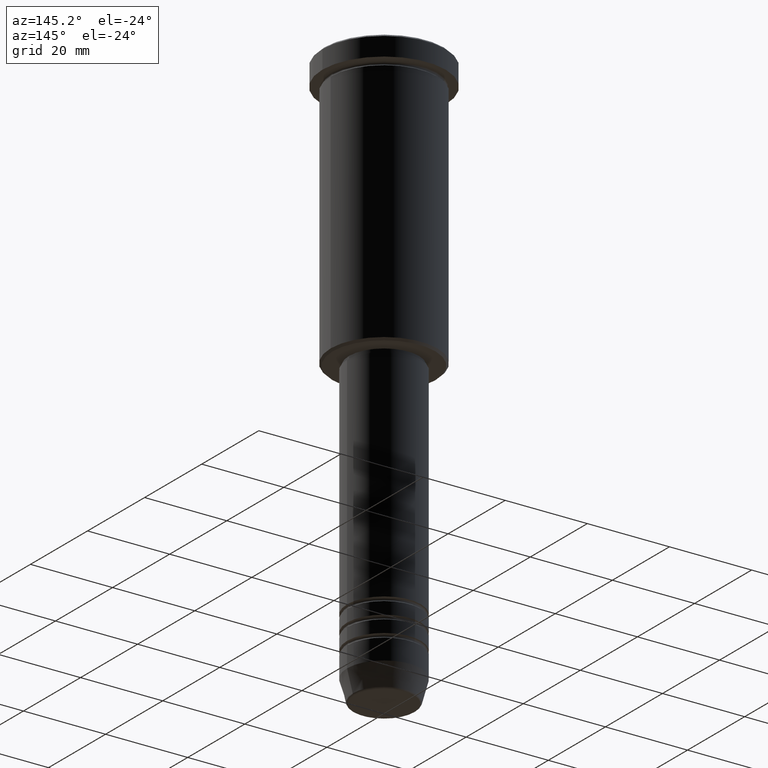
[diagram: clean part render]
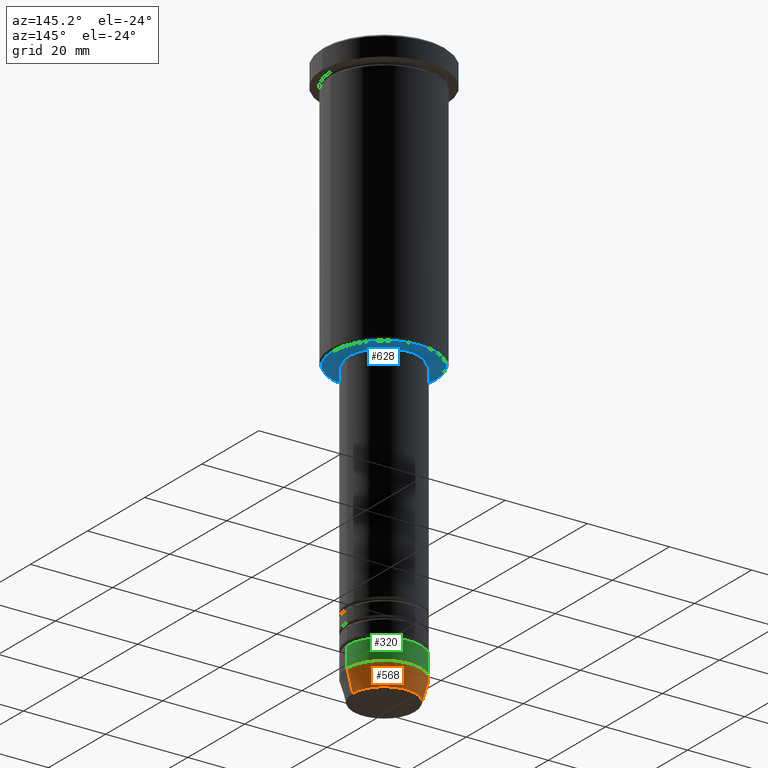
[diagram: same view with three faces highlighted in distinct colors, each labeled with its STEP entity id]
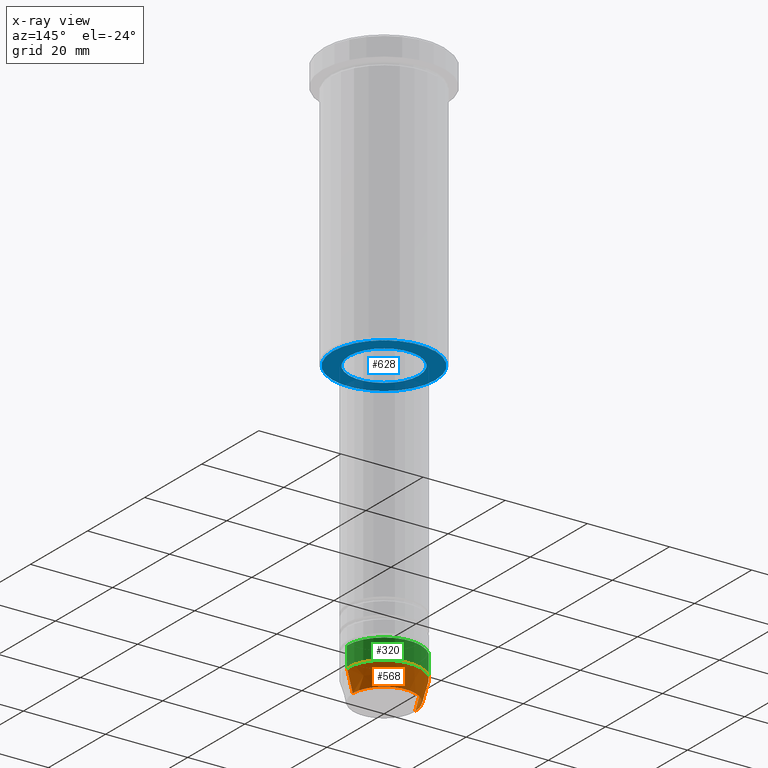
[diagram: x-ray of the same camera — body ghosted, the three highlighted faces saturated]
A machine part, auxiliary view with three faces highlighted in distinct colors.
The next image is the same camera in x-ray (body ghosted, the three faces saturated) — at least one of them is partly hidden behind the body in this view.
Their STEP definitions:

[orange] entity #568 — the highlighted conical surface has half-angle 15 deg.
#56 = CARTESIAN_POINT ( 'NONE',  ( 9.000000000000001776, 0.000000000000000000, -134.5000000000000000 ) ) ;
#64 = CARTESIAN_POINT ( 'NONE',  ( 9.000000000000001776, 0.000000000000000000, -134.5000000000000000 ) ) ;
#73 = DIRECTION ( 'NONE',  ( -0.000000000000000000, -0.000000000000000000, 1.000000000000000000 ) ) ;
#79 = CARTESIAN_POINT ( 'NONE',  ( 7.625578860783879698, 0.000000000000000000, -139.6294095225512706 ) ) ;
#116 = LINE ( 'NONE', #64, #734 ) ;
#166 = CARTESIAN_POINT ( 'NONE',  ( 0.000000000000000000, 0.000000000000000000, -139.6294095225512706 ) ) ;
#187 = EDGE_CURVE ( 'NONE', #752, #528, #116, .T. ) ;
#195 = CARTESIAN_POINT ( 'NONE',  ( 0.000000000000000000, 0.000000000000000000, -134.5000000000000000 ) ) ;
#212 = CONICAL_SURFACE ( 'NONE', #683, 9.000000000000001776, 0.2617993877991501295 ) ;
#221 = AXIS2_PLACEMENT_3D ( 'NONE', #1079, #73, #877 ) ;
#253 = DIRECTION ( 'NONE',  ( 1.000000000000000000, 0.000000000000000000, 0.000000000000000000 ) ) ;
#308 = VECTOR ( 'NONE', #715, 1000.000000000000000 ) ;
#325 = ORIENTED_EDGE ( 'NONE', *, *, #1105, .T. ) ;
#352 = CARTESIAN_POINT ( 'NONE',  ( -9.000000000000001776, 1.102182119232617911E-15, -134.5000000000000000 ) ) ;
#384 = VERTEX_POINT ( 'NONE', #352 ) ;
#394 = CARTESIAN_POINT ( 'NONE',  ( -7.625578860783880586, 1.018023096791544096E-15, -139.6294095225512706 ) ) ;
#400 = FACE_OUTER_BOUND ( 'NONE', #686, .T. ) ;
#433 = ORIENTED_EDGE ( 'NONE', *, *, #1142, .F. ) ;
#434 = CARTESIAN_POINT ( 'NONE',  ( -9.000000000000001776, 1.102182119232617911E-15, -134.5000000000000000 ) ) ;
#497 = CIRCLE ( 'NONE', #1122, 7.625578860783879698 ) ;
#528 = VERTEX_POINT ( 'NONE', #56 ) ;
#568 = ADVANCED_FACE ( 'NONE', ( #400 ), #212, .T. ) ;
#621 = EDGE_CURVE ( 'NONE', #1033, #384, #986, .T. ) ;
#682 = DIRECTION ( 'NONE',  ( 1.000000000000000000, 0.000000000000000000, 0.000000000000000000 ) ) ;
#683 = AXIS2_PLACEMENT_3D ( 'NONE', #195, #1147, #682 ) ;
#686 = EDGE_LOOP ( 'NONE', ( #325, #698, #433, #974 ) ) ;
#698 = ORIENTED_EDGE ( 'NONE', *, *, #621, .T. ) ;
#715 = DIRECTION ( 'NONE',  ( -0.2588190451025214056, 3.169619151431772953E-17, 0.9659258262890680902 ) ) ;
#734 = VECTOR ( 'NONE', #778, 1000.000000000000000 ) ;
#752 = VERTEX_POINT ( 'NONE', #79 ) ;
#778 = DIRECTION ( 'NONE',  ( 0.2588190451025214056, 0.000000000000000000, 0.9659258262890680902 ) ) ;
#877 = DIRECTION ( 'NONE',  ( 1.000000000000000000, 0.000000000000000000, 0.000000000000000000 ) ) ;
#974 = ORIENTED_EDGE ( 'NONE', *, *, #187, .F. ) ;
#986 = LINE ( 'NONE', #434, #308 ) ;
#1004 = CIRCLE ( 'NONE', #221, 9.000000000000001776 ) ;
#1033 = VERTEX_POINT ( 'NONE', #394 ) ;
#1068 = DIRECTION ( 'NONE',  ( -0.000000000000000000, -0.000000000000000000, 1.000000000000000000 ) ) ;
#1079 = CARTESIAN_POINT ( 'NONE',  ( 0.000000000000000000, 0.000000000000000000, -134.5000000000000000 ) ) ;
#1105 = EDGE_CURVE ( 'NONE', #752, #1033, #497, .T. ) ;
#1122 = AXIS2_PLACEMENT_3D ( 'NONE', #166, #1068, #253 ) ;
#1142 = EDGE_CURVE ( 'NONE', #528, #384, #1004, .T. ) ;
#1147 = DIRECTION ( 'NONE',  ( -0.000000000000000000, -0.000000000000000000, 1.000000000000000000 ) ) ;

[blue] entity #628 — the highlighted planar face has unit normal (0, 0, -1).
#15 = EDGE_LOOP ( 'NONE', ( #425, #561 ) ) ;
#30 = CARTESIAN_POINT ( 'NONE',  ( 0.000000000000000000, 0.000000000000000000, -66.00000000000000000 ) ) ;
#63 = EDGE_CURVE ( 'NONE', #493, #710, #770, .T. ) ;
#117 = AXIS2_PLACEMENT_3D ( 'NONE', #815, #606, #417 ) ;
#123 = CIRCLE ( 'NONE', #236, 8.500000000000000000 ) ;
#143 = DIRECTION ( 'NONE',  ( 0.000000000000000000, 0.000000000000000000, -1.000000000000000000 ) ) ;
#188 = CARTESIAN_POINT ( 'NONE',  ( 8.500000000000000000, 0.000000000000000000, -66.00000000000000000 ) ) ;
#231 = DIRECTION ( 'NONE',  ( -0.000000000000000000, -0.000000000000000000, 1.000000000000000000 ) ) ;
#236 = AXIS2_PLACEMENT_3D ( 'NONE', #498, #231, #1049 ) ;
#238 = AXIS2_PLACEMENT_3D ( 'NONE', #963, #143, #500 ) ;
#259 = EDGE_CURVE ( 'NONE', #585, #354, #123, .T. ) ;
#317 = DIRECTION ( 'NONE',  ( -0.000000000000000000, -0.000000000000000000, 1.000000000000000000 ) ) ;
#332 = PLANE ( 'NONE',  #117 ) ;
#339 = FACE_OUTER_BOUND ( 'NONE', #15, .T. ) ;
#354 = VERTEX_POINT ( 'NONE', #188 ) ;
#417 = DIRECTION ( 'NONE',  ( -1.000000000000000000, 0.000000000000000000, -0.000000000000000000 ) ) ;
#425 = ORIENTED_EDGE ( 'NONE', *, *, #63, .T. ) ;
#438 = FACE_BOUND ( 'NONE', #886, .T. ) ;
#484 = CARTESIAN_POINT ( 'NONE',  ( 0.000000000000000000, 0.000000000000000000, -66.00000000000000000 ) ) ;
#493 = VERTEX_POINT ( 'NONE', #1141 ) ;
#498 = CARTESIAN_POINT ( 'NONE',  ( 0.000000000000000000, 0.000000000000000000, -66.00000000000000000 ) ) ;
#500 = DIRECTION ( 'NONE',  ( -1.000000000000000000, 0.000000000000000000, 0.000000000000000000 ) ) ;
#561 = ORIENTED_EDGE ( 'NONE', *, *, #1180, .T. ) ;
#563 = AXIS2_PLACEMENT_3D ( 'NONE', #484, #317, #773 ) ;
#585 = VERTEX_POINT ( 'NONE', #600 ) ;
#600 = CARTESIAN_POINT ( 'NONE',  ( -8.500000000000000000, 1.040949779275250140E-15, -66.00000000000000000 ) ) ;
#606 = DIRECTION ( 'NONE',  ( 0.000000000000000000, 0.000000000000000000, -1.000000000000000000 ) ) ;
#618 = ORIENTED_EDGE ( 'NONE', *, *, #259, .T. ) ;
#628 = ADVANCED_FACE ( 'NONE', ( #339, #438 ), #332, .T. ) ;
#710 = VERTEX_POINT ( 'NONE', #970 ) ;
#758 = DIRECTION ( 'NONE',  ( -1.000000000000000000, 0.000000000000000000, 0.000000000000000000 ) ) ;
#770 = CIRCLE ( 'NONE', #1078, 12.49999999999999645 ) ;
#773 = DIRECTION ( 'NONE',  ( 1.000000000000000000, 0.000000000000000000, 0.000000000000000000 ) ) ;
#777 = CIRCLE ( 'NONE', #238, 12.49999999999999645 ) ;
#815 = CARTESIAN_POINT ( 'NONE',  ( 0.000000000000000000, 13.00000000000000000, -66.00000000000000000 ) ) ;
#856 = CIRCLE ( 'NONE', #563, 8.500000000000000000 ) ;
#886 = EDGE_LOOP ( 'NONE', ( #1162, #618 ) ) ;
#935 = EDGE_CURVE ( 'NONE', #354, #585, #856, .T. ) ;
#963 = CARTESIAN_POINT ( 'NONE',  ( 0.000000000000000000, 0.000000000000000000, -66.00000000000000000 ) ) ;
#970 = CARTESIAN_POINT ( 'NONE',  ( -12.49999999999999645, 1.561424668912875308E-15, -66.00000000000000000 ) ) ;
#1049 = DIRECTION ( 'NONE',  ( 1.000000000000000000, 0.000000000000000000, 0.000000000000000000 ) ) ;
#1078 = AXIS2_PLACEMENT_3D ( 'NONE', #30, #1128, #758 ) ;
#1128 = DIRECTION ( 'NONE',  ( 0.000000000000000000, 0.000000000000000000, -1.000000000000000000 ) ) ;
#1141 = CARTESIAN_POINT ( 'NONE',  ( 12.49999999999999645, 0.000000000000000000, -66.00000000000000000 ) ) ;
#1162 = ORIENTED_EDGE ( 'NONE', *, *, #935, .T. ) ;
#1180 = EDGE_CURVE ( 'NONE', #710, #493, #777, .T. ) ;

[green] entity #320 — the highlighted cylindrical surface (partial cylindrical patch) has radius 9 mm, axis along (-0, -0, 1).
#56 = CARTESIAN_POINT ( 'NONE',  ( 9.000000000000001776, 0.000000000000000000, -134.5000000000000000 ) ) ;
#70 = DIRECTION ( 'NONE',  ( -0.000000000000000000, -0.000000000000000000, 1.000000000000000000 ) ) ;
#73 = DIRECTION ( 'NONE',  ( -0.000000000000000000, -0.000000000000000000, 1.000000000000000000 ) ) ;
#98 = VECTOR ( 'NONE', #1075, 1000.000000000000000 ) ;
#136 = CARTESIAN_POINT ( 'NONE',  ( -9.000000000000001776, 1.102182119232617911E-15, 0.000000000000000000 ) ) ;
#149 = LINE ( 'NONE', #794, #98 ) ;
#152 = FACE_OUTER_BOUND ( 'NONE', #808, .T. ) ;
#221 = AXIS2_PLACEMENT_3D ( 'NONE', #1079, #73, #877 ) ;
#242 = EDGE_CURVE ( 'NONE', #1156, #347, #1038, .T. ) ;
#243 = ORIENTED_EDGE ( 'NONE', *, *, #242, .F. ) ;
#281 = EDGE_CURVE ( 'NONE', #384, #347, #697, .T. ) ;
#320 = ADVANCED_FACE ( 'NONE', ( #152 ), #510, .T. ) ;
#347 = VERTEX_POINT ( 'NONE', #442 ) ;
#352 = CARTESIAN_POINT ( 'NONE',  ( -9.000000000000001776, 1.102182119232617911E-15, -134.5000000000000000 ) ) ;
#384 = VERTEX_POINT ( 'NONE', #352 ) ;
#442 = CARTESIAN_POINT ( 'NONE',  ( -9.000000000000000000, 1.102182119232617714E-15, -129.5000000000000000 ) ) ;
#443 = ORIENTED_EDGE ( 'NONE', *, *, #741, .F. ) ;
#508 = ORIENTED_EDGE ( 'NONE', *, *, #1142, .T. ) ;
#510 = CYLINDRICAL_SURFACE ( 'NONE', #1039, 9.000000000000001776 ) ;
#511 = AXIS2_PLACEMENT_3D ( 'NONE', #1073, #966, #797 ) ;
#528 = VERTEX_POINT ( 'NONE', #56 ) ;
#673 = VECTOR ( 'NONE', #887, 1000.000000000000000 ) ;
#697 = LINE ( 'NONE', #136, #673 ) ;
#741 = EDGE_CURVE ( 'NONE', #528, #1156, #149, .T. ) ;
#794 = CARTESIAN_POINT ( 'NONE',  ( 9.000000000000001776, 0.000000000000000000, 0.000000000000000000 ) ) ;
#797 = DIRECTION ( 'NONE',  ( 1.000000000000000000, 0.000000000000000000, 0.000000000000000000 ) ) ;
#808 = EDGE_LOOP ( 'NONE', ( #508, #1045, #243, #443 ) ) ;
#877 = DIRECTION ( 'NONE',  ( 1.000000000000000000, 0.000000000000000000, 0.000000000000000000 ) ) ;
#880 = CARTESIAN_POINT ( 'NONE',  ( 0.000000000000000000, 0.000000000000000000, 0.000000000000000000 ) ) ;
#882 = CARTESIAN_POINT ( 'NONE',  ( 9.000000000000000000, 0.000000000000000000, -129.5000000000000000 ) ) ;
#887 = DIRECTION ( 'NONE',  ( -0.000000000000000000, -0.000000000000000000, 1.000000000000000000 ) ) ;
#966 = DIRECTION ( 'NONE',  ( -0.000000000000000000, -0.000000000000000000, 1.000000000000000000 ) ) ;
#1004 = CIRCLE ( 'NONE', #221, 9.000000000000001776 ) ;
#1038 = CIRCLE ( 'NONE', #511, 9.000000000000000000 ) ;
#1039 = AXIS2_PLACEMENT_3D ( 'NONE', #880, #70, #1163 ) ;
#1045 = ORIENTED_EDGE ( 'NONE', *, *, #281, .T. ) ;
#1073 = CARTESIAN_POINT ( 'NONE',  ( 0.000000000000000000, 0.000000000000000000, -129.5000000000000000 ) ) ;
#1075 = DIRECTION ( 'NONE',  ( -0.000000000000000000, -0.000000000000000000, 1.000000000000000000 ) ) ;
#1079 = CARTESIAN_POINT ( 'NONE',  ( 0.000000000000000000, 0.000000000000000000, -134.5000000000000000 ) ) ;
#1142 = EDGE_CURVE ( 'NONE', #528, #384, #1004, .T. ) ;
#1156 = VERTEX_POINT ( 'NONE', #882 ) ;
#1163 = DIRECTION ( 'NONE',  ( 1.000000000000000000, 0.000000000000000000, 0.000000000000000000 ) ) ;